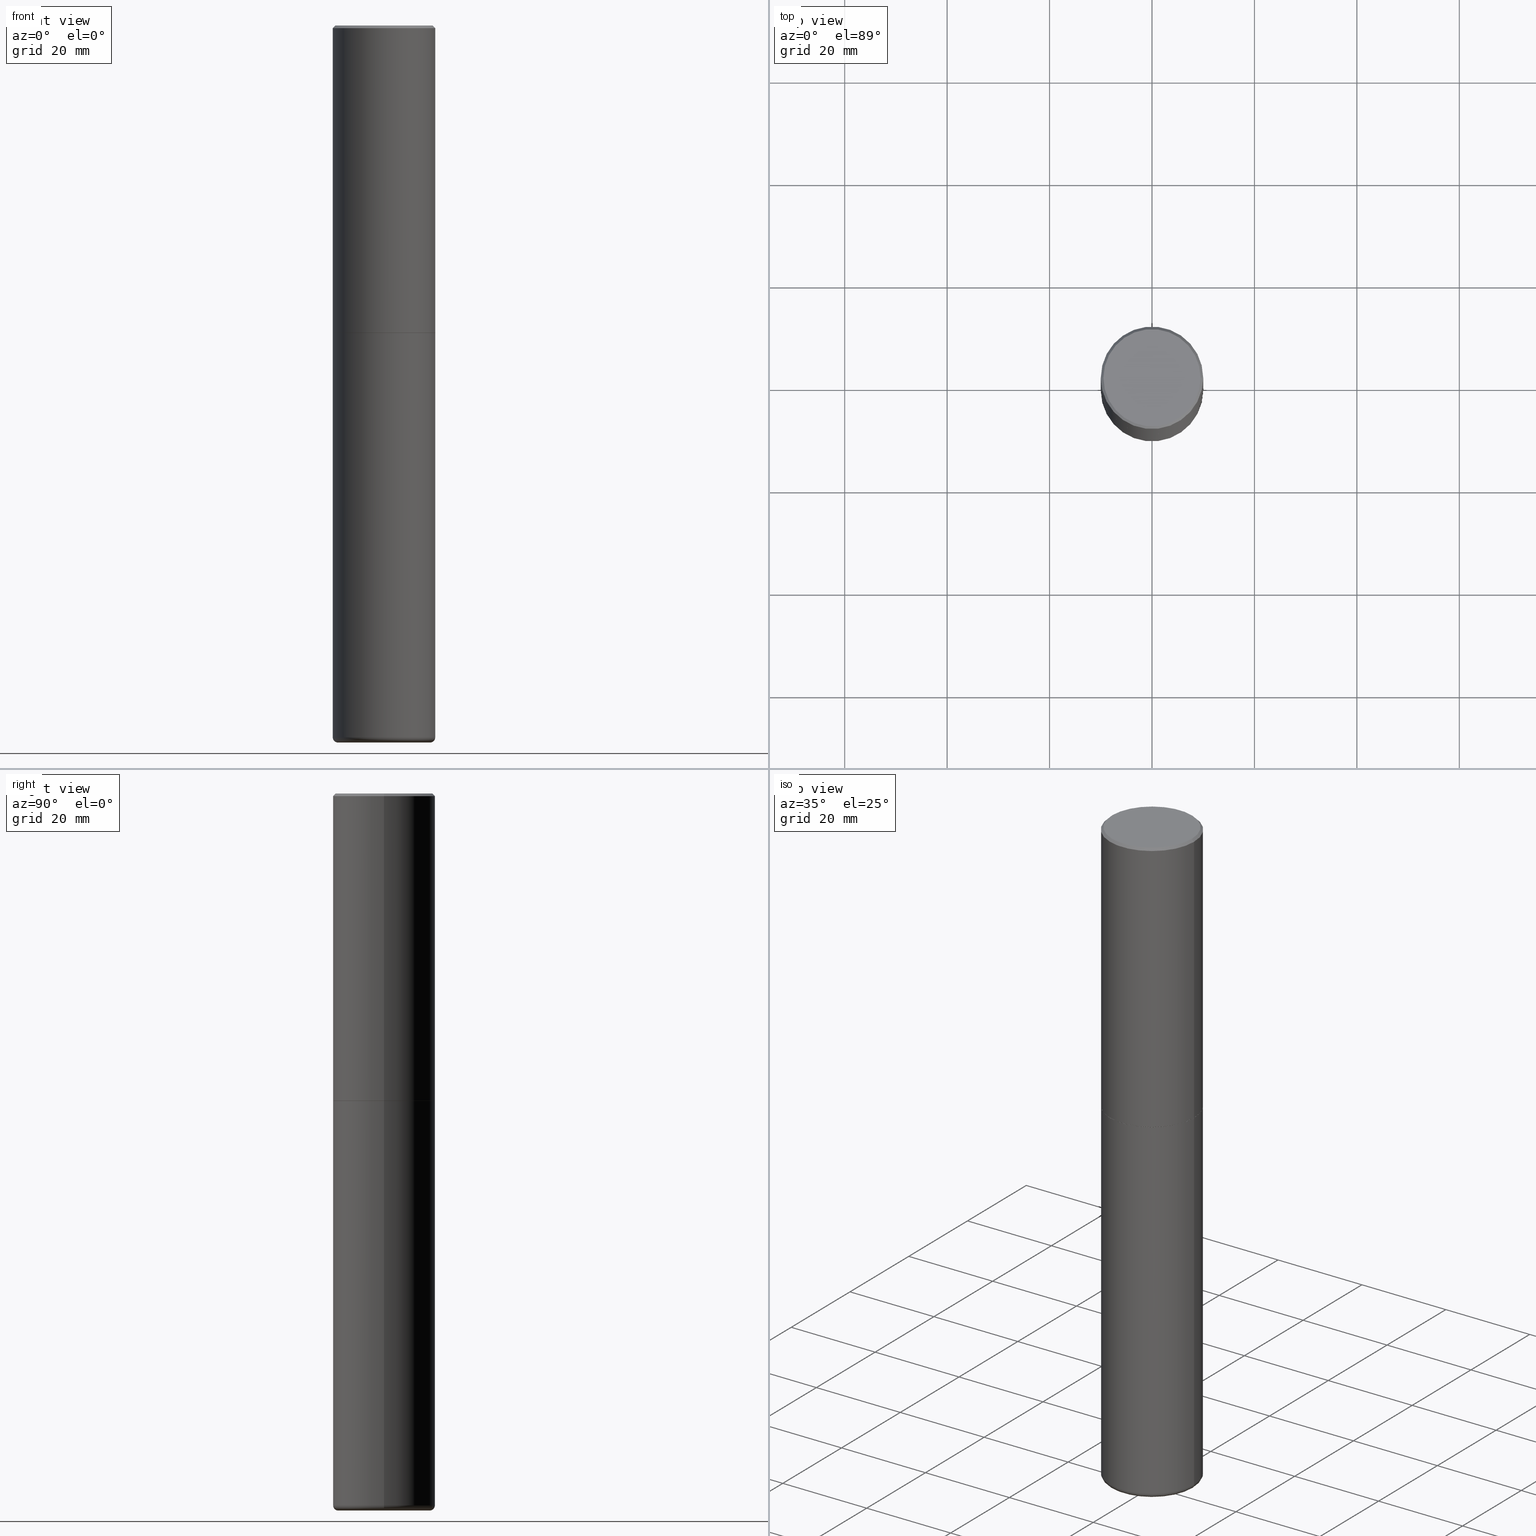
[diagram: canonical four-view strip — front | top / right | iso, engineering-drawing reading convention]
A machine part, canonical four-view strip (front | top / right | iso — engineering-drawing reading convention). The complete STEP part file that produces these views, byte-faithful:
ISO-10303-21;
HEADER;
FILE_DESCRIPTION (( 'STEP AP203' ),
    '1' );
FILE_NAME ('74546.STEP',
    '2024-03-06T15:27:01',
    ( '' ),
    ( '' ),
    'SwSTEP 2.0',
    'SolidWorks 2023',
    '' );
FILE_SCHEMA (( 'CONFIG_CONTROL_DESIGN' ));
ENDSEC;

DATA;
#1 = EDGE_CURVE ( 'NONE', #410, #103, #169, .T. ) ;
#2 = LINE ( 'NONE', #365, #347 ) ;
#3 = AXIS2_PLACEMENT_3D ( 'NONE', #111, #217, #334 ) ;
#4 = CIRCLE ( 'NONE', #85, 0.3737000000000003097 ) ;
#5 = VECTOR ( 'NONE', #183, 39.37007874015748143 ) ;
#6 = APPROVAL_ROLE ( '' ) ;
#7 = DIRECTION ( 'NONE',  ( 1.000000000000000000, -6.982962677686272233E-15, 4.883557194083114022E-29 ) ) ;
#8 = FACE_OUTER_BOUND ( 'NONE', #384, .T. ) ;
#9 = CARTESIAN_POINT ( 'NONE',  ( 5.774240945164344150E-29, -8.244085737276435042E-15, -2.361199999999999743 ) ) ;
#10 =( NAMED_UNIT ( * ) PLANE_ANGLE_UNIT ( ) SI_UNIT ( $, .RADIAN. ) );
#11 = DIRECTION ( 'NONE',  ( 0.7071067811865450192, -7.319954787623246579E-15, -0.7071067811865500152 ) ) ;
#12 = CARTESIAN_POINT ( 'NONE',  ( 0.000000000000000000, 0.000000000000000000, 0.000000000000000000 ) ) ;
#13 = CARTESIAN_POINT ( 'NONE',  ( 1.338258349496754075E-28, -1.910678247868523272E-14, -5.472400000000000375 ) ) ;
#14 = DIRECTION ( 'NONE',  ( 2.438088387897960049E-29, -3.491481338843145188E-15, -1.000000000000000000 ) ) ;
#15 = AXIS2_PLACEMENT_3D ( 'NONE', #236, #170, #63 ) ;
#16 = PRODUCT_DEFINITION ( 'UNKNOWN', '', #125, #247 ) ;
#17 = DIRECTION ( 'NONE',  ( 1.000000000000000000, -6.982962677686266711E-15, 4.877734241229871763E-29 ) ) ;
#18 = ADVANCED_FACE ( 'NONE', ( #21 ), #253, .T. ) ;
#19 = AXIS2_PLACEMENT_3D ( 'NONE', #339, #154, #362 ) ;
#20 = ORIENTED_EDGE ( 'NONE', *, *, #156, .F. ) ;
#21 = FACE_OUTER_BOUND ( 'NONE', #165, .T. ) ;
#22 = VERTEX_POINT ( 'NONE', #291 ) ;
#23 = EDGE_CURVE ( 'NONE', #346, #410, #50, .T. ) ;
#24 = CARTESIAN_POINT ( 'NONE',  ( -0.3926999999999999935, -5.457275895285365059E-15, -2.362200000000000077 ) ) ;
#25 = DIRECTION ( 'NONE',  ( -6.982962677686266711E-15, -1.000000000000000000, 3.491481338843145583E-15 ) ) ;
#26 = DATE_AND_TIME ( #234, #342 ) ;
#27 = CIRCLE ( 'NONE', #379, 0.3937000000000000499 ) ;
#28 = DIRECTION ( 'NONE',  ( -2.445468806185136877E-29, 3.491481338843145188E-15, 1.000000000000000000 ) ) ;
#29 = MECHANICAL_CONTEXT ( 'NONE', #42, 'mechanical' ) ;
#30 = ORIENTED_EDGE ( 'NONE', *, *, #23, .T. ) ;
#31 = ADVANCED_FACE ( 'NONE', ( #185 ), #276, .F. ) ;
#32 = DIRECTION ( 'NONE',  ( -1.000000000000000000, 7.105427357601014480E-15, 0.000000000000000000 ) ) ;
#33 = APPLICATION_PROTOCOL_DEFINITION ( 'international standard', 'config_control_design', 1994, #42 ) ;
#34 = CARTESIAN_POINT ( 'NONE',  ( 0.3937000000000000499, -2.770807688499515734E-15, -0.02000000000000008715 ) ) ;
#35 = DIRECTION ( 'NONE',  ( -2.445468806185136877E-29, 3.491481338843145188E-15, 1.000000000000000000 ) ) ;
#36 = DIMENSIONAL_EXPONENTS ( 1.000000000000000000, 0.000000000000000000, 0.000000000000000000, 0.000000000000000000, 0.000000000000000000, 0.000000000000000000, 0.000000000000000000 ) ;
#37 = FACE_OUTER_BOUND ( 'NONE', #109, .T. ) ;
#38 = CONICAL_SURFACE ( 'NONE', #280, 0.3926999999999999935, 0.7853981633975507526 ) ;
#39 = PERSON_AND_ORGANIZATION ( #54, #408 ) ;
#40 = EDGE_LOOP ( 'NONE', ( #114, #128, #259, #350 ) ) ;
#41 = CLOSED_SHELL ( 'NONE', ( #295, #245, #79, #402, #102, #370 ) ) ;
#42 = APPLICATION_CONTEXT ( 'configuration controlled 3d designs of mechanical parts and assemblies' ) ;
#43 = VECTOR ( 'NONE', #255, 39.37007874015748143 ) ;
#44 = DIRECTION ( 'NONE',  ( -2.445468806185136597E-29, 3.491481338843145583E-15, 1.000000000000000000 ) ) ;
#45 = DIRECTION ( 'NONE',  ( 1.000000000000000000, -6.982962677686265133E-15, 0.000000000000000000 ) ) ;
#46 = CARTESIAN_POINT ( 'NONE',  ( -0.3937000000000001609, 2.797406750687515575E-15, -1.936584745033357296E-29 ) ) ;
#47 = CARTESIAN_POINT ( 'NONE',  ( 5.776686413970529753E-29, -8.247577218615279626E-15, -2.362200000000000077 ) ) ;
#48 = COORDINATED_UNIVERSAL_TIME_OFFSET ( 5, 0, .BEHIND. ) ;
#49 = CARTESIAN_POINT ( 'NONE',  ( -0.3737000000000003097, 2.644447966039789847E-15, -2.219626494852397645E-16 ) ) ;
#50 = CIRCLE ( 'NONE', #374, 0.3926999999999999935 ) ;
#51 =( CONVERSION_BASED_UNIT ( 'INCH', #186 ) LENGTH_UNIT ( ) NAMED_UNIT ( #36 ) );
#52 = CARTESIAN_POINT ( 'NONE',  ( 4.890937612370294178E-31, -6.982962677686321191E-17, -0.02000000000000008715 ) ) ;
#53 = ORIENTED_EDGE ( 'NONE', *, *, #136, .T. ) ;
#54 = PERSON ( 'UNSPECIFIED', 'UNSPECIFIED', 'UNSPECIFIED', ('UNSPECIFIED'), ('UNSPECIFIED'), ('UNSPECIFIED') ) ;
#55 = ORIENTED_EDGE ( 'NONE', *, *, #283, .T. ) ;
#56 = EDGE_LOOP ( 'NONE', ( #66, #409, #232, #83 ) ) ;
#57 = AXIS2_PLACEMENT_3D ( 'NONE', #349, #61, #231 ) ;
#58 = DIRECTION ( 'NONE',  ( -2.445468806185136597E-29, 3.491481338843145583E-15, 1.000000000000000000 ) ) ;
#59 = DIRECTION ( 'NONE',  ( -2.445468806185136597E-29, 3.491481338843145583E-15, 1.000000000000000000 ) ) ;
#60 = CC_DESIGN_PERSON_AND_ORGANIZATION_ASSIGNMENT ( #269, #101, ( #125 ) ) ;
#61 = DIRECTION ( 'NONE',  ( 2.445468806185136597E-29, -3.491481338843145583E-15, -1.000000000000000000 ) ) ;
#62 = CC_DESIGN_PERSON_AND_ORGANIZATION_ASSIGNMENT ( #147, #330, ( #125 ) ) ;
#63 = DIRECTION ( 'NONE',  ( -1.000000000000000000, 6.982962677686265922E-15, -4.876176775795935793E-29 ) ) ;
#64 = EDGE_CURVE ( 'NONE', #326, #91, #206, .T. ) ;
#65 = ORIENTED_EDGE ( 'NONE', *, *, #337, .T. ) ;
#66 = ORIENTED_EDGE ( 'NONE', *, *, #156, .T. ) ;
#67 = AXIS2_PLACEMENT_3D ( 'NONE', #311, #366, #184 ) ;
#68 = DIRECTION ( 'NONE',  ( 1.000000000000000000, -6.982962677686272233E-15, 4.883557194083114022E-29 ) ) ;
#69 = APPROVAL ( #249, 'UNSPECIFIED' ) ;
#70 = APPLICATION_CONTEXT ( 'configuration controlled 3d designs of mechanical parts and assemblies' ) ;
#71 = PLANE ( 'NONE',  #318 ) ;
#72 = EDGE_CURVE ( 'NONE', #103, #22, #305, .T. ) ;
#73 = DIRECTION ( 'NONE',  ( -2.445468806185136597E-29, 3.491481338843145583E-15, 1.000000000000000000 ) ) ;
#74 = EDGE_CURVE ( 'NONE', #145, #142, #98, .T. ) ;
#75 = APPLICATION_PROTOCOL_DEFINITION ( 'international standard', 'config_control_design', 1994, #70 ) ;
#76 = ORIENTED_EDGE ( 'NONE', *, *, #1, .F. ) ;
#77 = SHAPE_DEFINITION_REPRESENTATION ( #363, #273 ) ;
#78 = CIRCLE ( 'NONE', #135, 0.3543000000000000038 ) ;
#79 = ADVANCED_FACE ( 'NONE', ( #353 ), #71, .F. ) ;
#80 = LOCAL_TIME ( 10, 27, 1.000000000000000000, #84 ) ;
#81 = EDGE_LOOP ( 'NONE', ( #229, #317 ) ) ;
#82 = CALENDAR_DATE ( 2024, 6, 3 ) ;
#83 = ORIENTED_EDGE ( 'NONE', *, *, #340, .F. ) ;
#84 = COORDINATED_UNIVERSAL_TIME_OFFSET ( 5, 0, .BEHIND. ) ;
#85 = AXIS2_PLACEMENT_3D ( 'NONE', #310, #400, #119 ) ;
#86 = FACE_OUTER_BOUND ( 'NONE', #193, .T. ) ;
#87 = SECURITY_CLASSIFICATION_LEVEL ( 'unclassified' ) ;
#88 = DIRECTION ( 'NONE',  ( -2.445468806185136597E-29, 3.491481338843145583E-15, 1.000000000000000000 ) ) ;
#89 = CARTESIAN_POINT ( 'NONE',  ( 0.3926999999999999935, -1.098978666214267525E-14, -2.362200000000000077 ) ) ;
#90 = DIRECTION ( 'NONE',  ( -2.445468806185136597E-29, 3.491481338843145583E-15, 1.000000000000000000 ) ) ;
#91 = VERTEX_POINT ( 'NONE', #34 ) ;
#92 = VECTOR ( 'NONE', #394, 39.37007874015748143 ) ;
#93 = VERTEX_POINT ( 'NONE', #174 ) ;
#94 = ORIENTED_EDGE ( 'NONE', *, *, #340, .T. ) ;
#95 = EDGE_LOOP ( 'NONE', ( #288, #405 ) ) ;
#96 = ADVANCED_FACE ( 'NONE', ( #386 ), #141, .T. ) ;
#97 = DIRECTION ( 'NONE',  ( -2.445468806185136597E-29, 3.491481338843145583E-15, 1.000000000000000000 ) ) ;
#98 = CIRCLE ( 'NONE', #163, 0.3937000000000000499 ) ;
#99 = TOROIDAL_SURFACE ( 'NONE', #319, 0.3543000000000000038, 0.03940000000000033753 ) ;
#100 = EDGE_CURVE ( 'NONE', #205, #93, #323, .T. ) ;
#101 = PERSON_AND_ORGANIZATION_ROLE ( 'design_supplier' ) ;
#102 = ADVANCED_FACE ( 'NONE', ( #37 ), #99, .T. ) ;
#103 = VERTEX_POINT ( 'NONE', #325 ) ;
#104 = CARTESIAN_POINT ( 'NONE',  ( 1.338258349496754075E-28, -1.910678247868523272E-14, -5.472400000000000375 ) ) ;
#105 = APPROVAL_PERSON_ORGANIZATION ( #39, #238, #338 ) ;
#106 = CC_DESIGN_APPROVAL ( #69, ( #294 ) ) ;
#107 = PERSON_AND_ORGANIZATION ( #54, #408 ) ;
#108 = LINE ( 'NONE', #219, #296 ) ;
#109 = EDGE_LOOP ( 'NONE', ( #127, #293, #137, #331 ) ) ;
#110 = APPROVAL_DATE_TIME ( #297, #69 ) ;
#111 = CARTESIAN_POINT ( 'NONE',  ( 4.890937612370294178E-31, -6.982962677686321191E-17, -0.02000000000000008715 ) ) ;
#112 = AXIS2_PLACEMENT_3D ( 'NONE', #131, #25, #265 ) ;
#113 = LINE ( 'NONE', #89, #43 ) ;
#114 = ORIENTED_EDGE ( 'NONE', *, *, #181, .T. ) ;
#115 = EDGE_CURVE ( 'NONE', #327, #205, #129, .T. ) ;
#116 = DIRECTION ( 'NONE',  ( 2.445468806185136597E-29, -3.491481338843145583E-15, -1.000000000000000000 ) ) ;
#117 = DIRECTION ( 'NONE',  ( -2.445468806185136597E-29, 3.491481338843145583E-15, 1.000000000000000000 ) ) ;
#118 = DIRECTION ( 'NONE',  ( 1.000000000000000000, -6.982962677686267499E-15, 0.000000000000000000 ) ) ;
#119 = DIRECTION ( 'NONE',  ( 1.000000000000000000, -6.982962677686266711E-15, 4.877734241229871763E-29 ) ) ;
#120 = PRODUCT ( '74546', '74546', '', ( #29 ) ) ;
#121 = VERTEX_POINT ( 'NONE', #171 ) ;
#122 = CARTESIAN_POINT ( 'NONE',  ( 5.776686413970529753E-29, -8.247577218615279626E-15, -2.362200000000000077 ) ) ;
#123 = AXIS2_PLACEMENT_3D ( 'NONE', #9, #117, #130 ) ;
#124 = AXIS2_PLACEMENT_3D ( 'NONE', #157, #88, #188 ) ;
#125 = PRODUCT_DEFINITION_FORMATION_WITH_SPECIFIED_SOURCE ( 'ANY', '', #120, .NOT_KNOWN. ) ;
#126 = EDGE_LOOP ( 'NONE', ( #358, #261, #94, #320 ) ) ;
#127 = ORIENTED_EDGE ( 'NONE', *, *, #115, .F. ) ;
#128 = ORIENTED_EDGE ( 'NONE', *, *, #115, .T. ) ;
#129 = CIRCLE ( 'NONE', #233, 0.03940000000000033753 ) ;
#130 = DIRECTION ( 'NONE',  ( 1.000000000000000000, -6.982962677686265922E-15, 0.000000000000000000 ) ) ;
#131 = CARTESIAN_POINT ( 'NONE',  ( 0.3543000000000000038, -2.158084615538947751E-14, -5.472400000000000375 ) ) ;
#132 = MANIFOLD_SOLID_BREP ( 'Body-Move/Copy2[1]', #41 ) ;
#133 = MANIFOLD_SOLID_BREP ( 'Body-Move/Copy2[2]', #341 ) ;
#134 = EDGE_LOOP ( 'NONE', ( #30, #381, #20, #302 ) ) ;
#135 = AXIS2_PLACEMENT_3D ( 'NONE', #189, #286, #161 ) ;
#136 = EDGE_CURVE ( 'NONE', #155, #326, #108, .T. ) ;
#137 = ORIENTED_EDGE ( 'NONE', *, *, #204, .T. ) ;
#138 = PERSON_AND_ORGANIZATION ( #54, #408 ) ;
#139 = CARTESIAN_POINT ( 'NONE',  ( 0.3937000000000000499, -1.099676962482036284E-14, -2.362200000000000077 ) ) ;
#140 = APPROVAL ( #304, 'UNSPECIFIED' ) ;
#141 = CYLINDRICAL_SURFACE ( 'NONE', #241, 0.3937000000000001609 ) ;
#142 = VERTEX_POINT ( 'NONE', #139 ) ;
#143 = CARTESIAN_POINT ( 'NONE',  ( -0.3937000000000000499, -1.087977309796274139E-14, -2.362200000000000077 ) ) ;
#144 = CIRCLE ( 'NONE', #179, 0.3543000000000000038 ) ;
#145 = VERTEX_POINT ( 'NONE', #143 ) ;
#146 = COORDINATED_UNIVERSAL_TIME_OFFSET ( 5, 0, .BEHIND. ) ;
#147 = PERSON_AND_ORGANIZATION ( #54, #408 ) ;
#148 = PLANE ( 'NONE',  #15 ) ;
#149 = CARTESIAN_POINT ( 'NONE',  ( 1.347893496593123871E-28, -1.924434684343565194E-14, -5.511800000000000921 ) ) ;
#150 = CARTESIAN_POINT ( 'NONE',  ( -0.3937000000000002164, -1.630937572799771557E-14, -5.472400000000000375 ) ) ;
#151 = EDGE_CURVE ( 'NONE', #121, #91, #2, .T. ) ;
#152 =( NAMED_UNIT ( * ) SI_UNIT ( $, .STERADIAN. ) SOLID_ANGLE_UNIT ( ) );
#153 = LINE ( 'NONE', #281, #207 ) ;
#154 = DIRECTION ( 'NONE',  ( -2.445468806185136597E-29, 3.491481338843145583E-15, 1.000000000000000000 ) ) ;
#155 = VERTEX_POINT ( 'NONE', #49 ) ;
#156 = EDGE_CURVE ( 'NONE', #22, #103, #172, .T. ) ;
#157 = CARTESIAN_POINT ( 'NONE',  ( 0.000000000000000000, 0.000000000000000000, 0.000000000000000000 ) ) ;
#158 = DIRECTION ( 'NONE',  ( -2.445468806185136597E-29, 3.491481338843145583E-15, 1.000000000000000000 ) ) ;
#159 = DIRECTION ( 'NONE',  ( -1.000000000000000000, 6.982962677686265922E-15, -4.876176775795935793E-29 ) ) ;
#160 = DIRECTION ( 'NONE',  ( -2.445468806185136597E-29, 3.491481338843145583E-15, 1.000000000000000000 ) ) ;
#161 = DIRECTION ( 'NONE',  ( 1.000000000000000000, -6.982962677686272233E-15, 0.000000000000000000 ) ) ;
#162 = ORIENTED_EDGE ( 'NONE', *, *, #151, .T. ) ;
#163 = AXIS2_PLACEMENT_3D ( 'NONE', #378, #197, #235 ) ;
#164 = AXIS2_PLACEMENT_3D ( 'NONE', #282, #308, #17 ) ;
#165 = EDGE_LOOP ( 'NONE', ( #224, #237, #53, #243 ) ) ;
#166 = EDGE_CURVE ( 'NONE', #155, #121, #214, .T. ) ;
#167 = EDGE_CURVE ( 'NONE', #121, #155, #4, .T. ) ;
#168 = CONICAL_SURFACE ( 'NONE', #260, 0.3926999999999999935, 0.7853981633975507526 ) ;
#169 = LINE ( 'NONE', #24, #287 ) ;
#170 = DIRECTION ( 'NONE',  ( 2.438088387897960049E-29, -3.491481338843145188E-15, -1.000000000000000000 ) ) ;
#171 = CARTESIAN_POINT ( 'NONE',  ( 0.3737000000000003097, -2.667287895133369937E-15, -2.219626494852029345E-16 ) ) ;
#172 = CIRCLE ( 'NONE', #19, 0.3937000000000002720 ) ;
#173 = DIRECTION ( 'NONE',  ( 1.000000000000000000, -6.982962677686266711E-15, 4.876176775795935793E-29 ) ) ;
#174 = CARTESIAN_POINT ( 'NONE',  ( 0.3937000000000002164, -2.185597488489031909E-14, -5.472400000000000375 ) ) ;
#175 = APPROVAL_STATUS ( 'not_yet_approved' ) ;
#176 = CC_DESIGN_PERSON_AND_ORGANIZATION_ASSIGNMENT ( #138, #299, ( #16 ) ) ;
#177 = APPROVAL_ROLE ( '' ) ;
#178 = CARTESIAN_POINT ( 'NONE',  ( 5.776686413970529753E-29, -8.247577218615279626E-15, -2.362200000000000077 ) ) ;
#179 = AXIS2_PLACEMENT_3D ( 'NONE', #149, #278, #376 ) ;
#180 = DATE_TIME_ROLE ( 'classification_date' ) ;
#181 = EDGE_CURVE ( 'NONE', #258, #327, #144, .T. ) ;
#182 = DIRECTION ( 'NONE',  ( 1.000000000000000000, -6.982962677686265133E-15, 0.000000000000000000 ) ) ;
#183 = DIRECTION ( 'NONE',  ( -2.445468806185136877E-29, 3.491481338843145188E-15, 1.000000000000000000 ) ) ;
#184 = DIRECTION ( 'NONE',  ( 1.000000000000000000, -6.982962677686265133E-15, 0.000000000000000000 ) ) ;
#185 = FACE_OUTER_BOUND ( 'NONE', #81, .T. ) ;
#186 = LENGTH_MEASURE_WITH_UNIT ( LENGTH_MEASURE( 0.02539999999999999897 ), #192 );
#187 = CARTESIAN_POINT ( 'NONE',  ( 0.000000000000000000, 0.000000000000000000, 0.000000000000000000 ) ) ;
#188 = DIRECTION ( 'NONE',  ( 1.000000000000000000, -6.982962677686265922E-15, 4.876176775795935793E-29 ) ) ;
#189 = CARTESIAN_POINT ( 'NONE',  ( 1.347893496593123871E-28, -1.924434684343565194E-14, -5.511800000000000921 ) ) ;
#190 =( GEOMETRIC_REPRESENTATION_CONTEXT ( 3 ) GLOBAL_UNCERTAINTY_ASSIGNED_CONTEXT ( ( #212 ) ) GLOBAL_UNIT_ASSIGNED_CONTEXT ( ( #51, #10, #152 ) ) REPRESENTATION_CONTEXT ( 'NONE', 'WORKASPACE' ) );
#191 = CC_DESIGN_APPROVAL ( #140, ( #125 ) ) ;
#192 =( LENGTH_UNIT ( ) NAMED_UNIT ( * ) SI_UNIT ( $, .METRE. ) );
#193 = EDGE_LOOP ( 'NONE', ( #76, #415, #377, #289 ) ) ;
#194 = CONICAL_SURFACE ( 'NONE', #316, 0.3937000000000000499, 0.7853981633974447263 ) ;
#195 = DIRECTION ( 'NONE',  ( -2.438088387897960049E-29, 3.491481338843145188E-15, 1.000000000000000000 ) ) ;
#196 = ADVANCED_FACE ( 'NONE', ( #284 ), #168, .T. ) ;
#197 = DIRECTION ( 'NONE',  ( -2.445468806185136597E-29, 3.491481338843145583E-15, 1.000000000000000000 ) ) ;
#198 = ORIENTED_EDGE ( 'NONE', *, *, #275, .F. ) ;
#199 = FACE_OUTER_BOUND ( 'NONE', #95, .T. ) ;
#200 = AXIS2_PLACEMENT_3D ( 'NONE', #397, #195, #367 ) ;
#201 = VECTOR ( 'NONE', #35, 39.37007874015748143 ) ;
#202 = AXIS2_PLACEMENT_3D ( 'NONE', #336, #333, #7 ) ;
#203 = CARTESIAN_POINT ( 'NONE',  ( 2.609533152651359776E-15, 0.3737000000000003097, -1.415747901068295320E-15 ) ) ;
#204 = EDGE_CURVE ( 'NONE', #258, #93, #389, .T. ) ;
#205 = VERTEX_POINT ( 'NONE', #150 ) ;
#206 = CIRCLE ( 'NONE', #3, 0.3937000000000000499 ) ;
#207 = VECTOR ( 'NONE', #28, 39.37007874015748143 ) ;
#208 = EDGE_CURVE ( 'NONE', #410, #346, #225, .T. ) ;
#209 = ORIENTED_EDGE ( 'NONE', *, *, #337, .F. ) ;
#210 = CALENDAR_DATE ( 2024, 6, 3 ) ;
#211 = EDGE_CURVE ( 'NONE', #346, #22, #113, .T. ) ;
#212 = UNCERTAINTY_MEASURE_WITH_UNIT (LENGTH_MEASURE( 1.000000000000000082E-05 ), #51, 'distance_accuracy_value', 'NONE');
#213 = PERSON_AND_ORGANIZATION ( #54, #408 ) ;
#214 = CIRCLE ( 'NONE', #164, 0.3737000000000003097 ) ;
#215 = APPROVAL_PERSON_ORGANIZATION ( #213, #69, #6 ) ;
#216 = CARTESIAN_POINT ( 'NONE',  ( 5.776686413970529753E-29, -8.247577218615279626E-15, -2.362200000000000077 ) ) ;
#217 = DIRECTION ( 'NONE',  ( -2.445468806185136597E-29, 3.491481338843145583E-15, 1.000000000000000000 ) ) ;
#218 = DATE_TIME_ROLE ( 'creation_date' ) ;
#219 = CARTESIAN_POINT ( 'NONE',  ( -0.3937000000000000499, 2.679362779428219918E-15, -0.02000000000000008715 ) ) ;
#220 = LINE ( 'NONE', #46, #5 ) ;
#221 = DIRECTION ( 'NONE',  ( 1.000000000000000000, -6.982962677686267499E-15, 0.000000000000000000 ) ) ;
#222 = CYLINDRICAL_SURFACE ( 'NONE', #262, 0.3937000000000000499 ) ;
#223 = CC_DESIGN_DATE_AND_TIME_ASSIGNMENT ( #361, #218, ( #16 ) ) ;
#224 = ORIENTED_EDGE ( 'NONE', *, *, #151, .F. ) ;
#225 = CIRCLE ( 'NONE', #67, 0.3926999999999999935 ) ;
#226 = LOCAL_TIME ( 10, 27, 1.000000000000000000, #146 ) ;
#227 = EDGE_CURVE ( 'NONE', #93, #205, #27, .T. ) ;
#228 = DIRECTION ( 'NONE',  ( 1.000000000000000000, -6.982962677686265922E-15, 0.000000000000000000 ) ) ;
#229 = ORIENTED_EDGE ( 'NONE', *, *, #23, .F. ) ;
#230 = EDGE_LOOP ( 'NONE', ( #198, #356, #65, #267 ) ) ;
#231 = DIRECTION ( 'NONE',  ( -1.000000000000000000, 6.982962677686265922E-15, 0.000000000000000000 ) ) ;
#232 = ORIENTED_EDGE ( 'NONE', *, *, #407, .F. ) ;
#233 = AXIS2_PLACEMENT_3D ( 'NONE', #264, #239, #32 ) ;
#234 = CALENDAR_DATE ( 2024, 6, 3 ) ;
#235 = DIRECTION ( 'NONE',  ( 1.000000000000000000, -6.982962677686267499E-15, 0.000000000000000000 ) ) ;
#236 = CARTESIAN_POINT ( 'NONE',  ( 1.608174522551343460E-29, -3.624395144008107649E-14, -5.511800000000000033 ) ) ;
#237 = ORIENTED_EDGE ( 'NONE', *, *, #166, .F. ) ;
#238 = APPROVAL ( #175, 'UNSPECIFIED' ) ;
#239 = DIRECTION ( 'NONE',  ( 7.105427357601001859E-15, 1.000000000000000000, -3.491481338843145583E-15 ) ) ;
#240 = PERSON_AND_ORGANIZATION ( #54, #408 ) ;
#241 = AXIS2_PLACEMENT_3D ( 'NONE', #388, #73, #298 ) ;
#242 = DIRECTION ( 'NONE',  ( 2.438088387897960049E-29, -3.491481338843145188E-15, -1.000000000000000000 ) ) ;
#243 = ORIENTED_EDGE ( 'NONE', *, *, #64, .T. ) ;
#244 = PERSON_AND_ORGANIZATION_ROLE ( 'classification_officer' ) ;
#245 = ADVANCED_FACE ( 'NONE', ( #314 ), #383, .T. ) ;
#246 = AXIS2_PLACEMENT_3D ( 'NONE', #187, #392, #332 ) ;
#247 = DESIGN_CONTEXT ( 'detailed design', #70, 'design' ) ;
#248 = ORIENTED_EDGE ( 'NONE', *, *, #416, .F. ) ;
#249 = APPROVAL_STATUS ( 'not_yet_approved' ) ;
#250 = CARTESIAN_POINT ( 'NONE',  ( 0.3543000000000000038, -2.171841052013989988E-14, -5.511800000000000921 ) ) ;
#251 = CARTESIAN_POINT ( 'NONE',  ( 0.000000000000000000, 0.000000000000000000, 0.000000000000000000 ) ) ;
#252 = APPROVAL_DATE_TIME ( #303, #140 ) ;
#253 = CONICAL_SURFACE ( 'NONE', #57, 0.3937000000000000499, 0.7853981633974447263 ) ;
#254 = APPROVAL_PERSON_ORGANIZATION ( #385, #140, #177 ) ;
#255 = DIRECTION ( 'NONE',  ( 0.7071067811866199593, -2.468850131083015945E-15, 0.7071067811864750752 ) ) ;
#256 = FACE_OUTER_BOUND ( 'NONE', #348, .T. ) ;
#257 = CC_DESIGN_PERSON_AND_ORGANIZATION_ASSIGNMENT ( #240, #387, ( #120 ) ) ;
#258 = VERTEX_POINT ( 'NONE', #250 ) ;
#259 = ORIENTED_EDGE ( 'NONE', *, *, #227, .F. ) ;
#260 = AXIS2_PLACEMENT_3D ( 'NONE', #122, #160, #45 ) ;
#261 = ORIENTED_EDGE ( 'NONE', *, *, #72, .T. ) ;
#262 = AXIS2_PLACEMENT_3D ( 'NONE', #251, #158, #344 ) ;
#263 = DIRECTION ( 'NONE',  ( -0.7071067811866199593, 7.493145998870616062E-15, 0.7071067811864750752 ) ) ;
#264 = CARTESIAN_POINT ( 'NONE',  ( -0.3543000000000000038, -1.658932956588719576E-14, -5.472400000000000375 ) ) ;
#265 = DIRECTION ( 'NONE',  ( 1.000000000000000000, -6.982962677686268288E-15, 0.000000000000000000 ) ) ;
#266 = EDGE_LOOP ( 'NONE', ( #406, #162, #272, #411 ) ) ;
#267 = ORIENTED_EDGE ( 'NONE', *, *, #74, .F. ) ;
#268 = CIRCLE ( 'NONE', #412, 0.3937000000000000499 ) ;
#269 = PERSON_AND_ORGANIZATION ( #54, #408 ) ;
#270 = ADVANCED_FACE ( 'NONE', ( #86 ), #38, .T. ) ;
#271 = FACE_OUTER_BOUND ( 'NONE', #56, .T. ) ;
#272 = ORIENTED_EDGE ( 'NONE', *, *, #407, .T. ) ;
#273 = ADVANCED_BREP_SHAPE_REPRESENTATION ( '74546', ( #132, #133, #246 ), #190 ) ;
#274 = DATE_AND_TIME ( #210, #226 ) ;
#275 = EDGE_CURVE ( 'NONE', #205, #145, #279, .T. ) ;
#276 = PLANE ( 'NONE',  #200 ) ;
#277 = COORDINATED_UNIVERSAL_TIME_OFFSET ( 5, 0, .BEHIND. ) ;
#278 = DIRECTION ( 'NONE',  ( -2.445468806185136597E-29, 3.491481338843145583E-15, 1.000000000000000000 ) ) ;
#279 = LINE ( 'NONE', #369, #92 ) ;
#280 = AXIS2_PLACEMENT_3D ( 'NONE', #216, #44, #182 ) ;
#281 = CARTESIAN_POINT ( 'NONE',  ( 0.3937000000000000499, -2.749192406205083217E-15, 1.919750796630860172E-29 ) ) ;
#282 = CARTESIAN_POINT ( 'NONE',  ( 5.428027354543142984E-45, -7.749784485978325769E-31, -2.219626494852213988E-16 ) ) ;
#283 = EDGE_CURVE ( 'NONE', #142, #145, #329, .T. ) ;
#284 = FACE_OUTER_BOUND ( 'NONE', #134, .T. ) ;
#285 = ADVANCED_FACE ( 'NONE', ( #399 ), #194, .T. ) ;
#286 = DIRECTION ( 'NONE',  ( -2.445468806185136597E-29, 3.491481338843145583E-15, 1.000000000000000000 ) ) ;
#287 = VECTOR ( 'NONE', #263, 39.37007874015748143 ) ;
#288 = ORIENTED_EDGE ( 'NONE', *, *, #166, .T. ) ;
#289 = ORIENTED_EDGE ( 'NONE', *, *, #72, .F. ) ;
#290 = ORIENTED_EDGE ( 'NONE', *, *, #181, .F. ) ;
#291 = CARTESIAN_POINT ( 'NONE',  ( 0.3937000000000002720, -1.099327814348151984E-14, -2.361199999999999743 ) ) ;
#292 = PRODUCT_RELATED_PRODUCT_CATEGORY ( 'detail', '', ( #120 ) ) ;
#293 = ORIENTED_EDGE ( 'NONE', *, *, #416, .T. ) ;
#294 = SECURITY_CLASSIFICATION ( '', '', #87 ) ;
#295 = ADVANCED_FACE ( 'NONE', ( #256 ), #372, .T. ) ;
#296 = VECTOR ( 'NONE', #414, 39.37007874015748143 ) ;
#297 = DATE_AND_TIME ( #357, #307 ) ;
#298 = DIRECTION ( 'NONE',  ( 1.000000000000000000, -6.982962677686266711E-15, 4.876176775795935793E-29 ) ) ;
#299 = PERSON_AND_ORGANIZATION_ROLE ( 'creator' ) ;
#300 = LINE ( 'NONE', #354, #201 ) ;
#301 = CARTESIAN_POINT ( 'NONE',  ( 0.3926999999999999935, -1.098978666214267525E-14, -2.362200000000000077 ) ) ;
#302 = ORIENTED_EDGE ( 'NONE', *, *, #211, .F. ) ;
#303 = DATE_AND_TIME ( #82, #321 ) ;
#304 = APPROVAL_STATUS ( 'not_yet_approved' ) ;
#305 = CIRCLE ( 'NONE', #123, 0.3937000000000002720 ) ;
#306 = AXIS2_PLACEMENT_3D ( 'NONE', #368, #90, #118 ) ;
#307 = LOCAL_TIME ( 10, 27, 1.000000000000000000, #391 ) ;
#308 = DIRECTION ( 'NONE',  ( -2.445468806185136597E-29, 3.491481338843145583E-15, 1.000000000000000000 ) ) ;
#309 = FACE_OUTER_BOUND ( 'NONE', #230, .T. ) ;
#310 = CARTESIAN_POINT ( 'NONE',  ( 5.428027354543142984E-45, -7.749784485978325769E-31, -2.219626494852213988E-16 ) ) ;
#311 = CARTESIAN_POINT ( 'NONE',  ( 5.776686413970529753E-29, -8.247577218615279626E-15, -2.362200000000000077 ) ) ;
#312 = DIRECTION ( 'NONE',  ( 1.000000000000000000, -6.982962677686265133E-15, 0.000000000000000000 ) ) ;
#313 = CARTESIAN_POINT ( 'NONE',  ( -0.3543000000000000038, -1.651813482931766843E-14, -5.511800000000000921 ) ) ;
#314 = FACE_OUTER_BOUND ( 'NONE', #40, .T. ) ;
#315 = EDGE_CURVE ( 'NONE', #103, #326, #220, .T. ) ;
#316 = AXIS2_PLACEMENT_3D ( 'NONE', #343, #116, #335 ) ;
#317 = ORIENTED_EDGE ( 'NONE', *, *, #208, .F. ) ;
#318 = AXIS2_PLACEMENT_3D ( 'NONE', #178, #242, #355 ) ;
#319 = AXIS2_PLACEMENT_3D ( 'NONE', #382, #97, #68 ) ;
#320 = ORIENTED_EDGE ( 'NONE', *, *, #64, .F. ) ;
#321 = LOCAL_TIME ( 10, 27, 1.000000000000000000, #277 ) ;
#322 = EDGE_LOOP ( 'NONE', ( #55, #345 ) ) ;
#323 = CIRCLE ( 'NONE', #375, 0.3937000000000000499 ) ;
#324 = ORIENTED_EDGE ( 'NONE', *, *, #283, .F. ) ;
#325 = CARTESIAN_POINT ( 'NONE',  ( -0.3937000000000003830, -1.359550931339130834E-15, -2.361199999999999743 ) ) ;
#326 = VERTEX_POINT ( 'NONE', #396 ) ;
#327 = VERTEX_POINT ( 'NONE', #313 ) ;
#328 = DIRECTION ( 'NONE',  ( -2.445468806185136597E-29, 3.491481338843145583E-15, 1.000000000000000000 ) ) ;
#329 = CIRCLE ( 'NONE', #306, 0.3937000000000000499 ) ;
#330 = PERSON_AND_ORGANIZATION_ROLE ( 'creator' ) ;
#331 = ORIENTED_EDGE ( 'NONE', *, *, #100, .F. ) ;
#332 = DIRECTION ( 'NONE',  ( 1.000000000000000000, 0.000000000000000000, 0.000000000000000000 ) ) ;
#333 = DIRECTION ( 'NONE',  ( -2.445468806185136597E-29, 3.491481338843145583E-15, 1.000000000000000000 ) ) ;
#334 = DIRECTION ( 'NONE',  ( 1.000000000000000000, -6.982962677686265922E-15, 0.000000000000000000 ) ) ;
#335 = DIRECTION ( 'NONE',  ( -1.000000000000000000, 6.982962677686265922E-15, 0.000000000000000000 ) ) ;
#336 = CARTESIAN_POINT ( 'NONE',  ( 1.338258349496754075E-28, -1.910678247868523272E-14, -5.472400000000000375 ) ) ;
#337 = EDGE_CURVE ( 'NONE', #93, #142, #153, .T. ) ;
#338 = APPROVAL_ROLE ( '' ) ;
#339 = CARTESIAN_POINT ( 'NONE',  ( 5.774240945164344150E-29, -8.244085737276435042E-15, -2.361199999999999743 ) ) ;
#340 = EDGE_CURVE ( 'NONE', #22, #91, #300, .T. ) ;
#341 = CLOSED_SHELL ( 'NONE', ( #196, #360, #285, #18, #96, #270, #31, #380 ) ) ;
#342 = LOCAL_TIME ( 10, 27, 1.000000000000000000, #48 ) ;
#343 = CARTESIAN_POINT ( 'NONE',  ( 4.890937612370294178E-31, -6.982962677686321191E-17, -0.02000000000000008715 ) ) ;
#344 = DIRECTION ( 'NONE',  ( 1.000000000000000000, -6.982962677686265922E-15, 4.876176775795935793E-29 ) ) ;
#345 = ORIENTED_EDGE ( 'NONE', *, *, #74, .T. ) ;
#346 = VERTEX_POINT ( 'NONE', #301 ) ;
#347 = VECTOR ( 'NONE', #11, 39.37007874015748143 ) ;
#348 = EDGE_LOOP ( 'NONE', ( #418, #373, #324, #209 ) ) ;
#349 = CARTESIAN_POINT ( 'NONE',  ( 4.890937612370294178E-31, -6.982962677686321191E-17, -0.02000000000000008715 ) ) ;
#350 = ORIENTED_EDGE ( 'NONE', *, *, #204, .F. ) ;
#351 = PLANE ( 'NONE',  #352 ) ;
#352 = AXIS2_PLACEMENT_3D ( 'NONE', #203, #14, #159 ) ;
#353 = FACE_OUTER_BOUND ( 'NONE', #322, .T. ) ;
#354 = CARTESIAN_POINT ( 'NONE',  ( 0.3937000000000001609, -2.749192406205084400E-15, 1.919750796630860732E-29 ) ) ;
#355 = DIRECTION ( 'NONE',  ( -1.000000000000000000, 6.982962677686265922E-15, -4.876176775795935793E-29 ) ) ;
#356 = ORIENTED_EDGE ( 'NONE', *, *, #100, .T. ) ;
#357 = CALENDAR_DATE ( 2024, 6, 3 ) ;
#358 = ORIENTED_EDGE ( 'NONE', *, *, #315, .F. ) ;
#359 = DIRECTION ( 'NONE',  ( 1.000000000000000000, -6.982962677686267499E-15, 0.000000000000000000 ) ) ;
#360 = ADVANCED_FACE ( 'NONE', ( #271 ), #417, .T. ) ;
#361 = DATE_AND_TIME ( #364, #80 ) ;
#362 = DIRECTION ( 'NONE',  ( 1.000000000000000000, -6.982962677686265922E-15, 0.000000000000000000 ) ) ;
#363 = PRODUCT_DEFINITION_SHAPE ( 'NONE', 'NONE',  #16 ) ;
#364 = CALENDAR_DATE ( 2024, 6, 3 ) ;
#365 = CARTESIAN_POINT ( 'NONE',  ( 0.3937000000000000499, -2.770807688499515734E-15, -0.02000000000000008715 ) ) ;
#366 = DIRECTION ( 'NONE',  ( -2.445468806185136597E-29, 3.491481338843145583E-15, 1.000000000000000000 ) ) ;
#367 = DIRECTION ( 'NONE',  ( 1.000000000000000000, -6.982962677686265922E-15, 4.876176775795935793E-29 ) ) ;
#368 = CARTESIAN_POINT ( 'NONE',  ( 5.776686413970529753E-29, -8.247577218615279626E-15, -2.362200000000000077 ) ) ;
#369 = CARTESIAN_POINT ( 'NONE',  ( -0.3937000000000000499, 2.797406750687514786E-15, -1.936584745033356735E-29 ) ) ;
#370 = ADVANCED_FACE ( 'NONE', ( #8 ), #148, .T. ) ;
#371 = CC_DESIGN_DATE_AND_TIME_ASSIGNMENT ( #274, #180, ( #294 ) ) ;
#372 = CYLINDRICAL_SURFACE ( 'NONE', #124, 0.3937000000000000499 ) ;
#373 = ORIENTED_EDGE ( 'NONE', *, *, #275, .T. ) ;
#374 = AXIS2_PLACEMENT_3D ( 'NONE', #47, #58, #312 ) ;
#375 = AXIS2_PLACEMENT_3D ( 'NONE', #104, #328, #359 ) ;
#376 = DIRECTION ( 'NONE',  ( 1.000000000000000000, -6.982962677686272233E-15, 0.000000000000000000 ) ) ;
#377 = ORIENTED_EDGE ( 'NONE', *, *, #211, .T. ) ;
#378 = CARTESIAN_POINT ( 'NONE',  ( 5.776686413970529753E-29, -8.247577218615279626E-15, -2.362200000000000077 ) ) ;
#379 = AXIS2_PLACEMENT_3D ( 'NONE', #13, #393, #221 ) ;
#380 = ADVANCED_FACE ( 'NONE', ( #199 ), #351, .F. ) ;
#381 = ORIENTED_EDGE ( 'NONE', *, *, #1, .T. ) ;
#382 = CARTESIAN_POINT ( 'NONE',  ( 1.338258349496754075E-28, -1.910678247868523272E-14, -5.472400000000000375 ) ) ;
#383 = TOROIDAL_SURFACE ( 'NONE', #202, 0.3543000000000000038, 0.03940000000000033753 ) ;
#384 = EDGE_LOOP ( 'NONE', ( #290, #248 ) ) ;
#385 = PERSON_AND_ORGANIZATION ( #54, #408 ) ;
#386 = FACE_OUTER_BOUND ( 'NONE', #126, .T. ) ;
#387 = PERSON_AND_ORGANIZATION_ROLE ( 'design_owner' ) ;
#388 = CARTESIAN_POINT ( 'NONE',  ( 0.000000000000000000, 0.000000000000000000, 0.000000000000000000 ) ) ;
#389 = CIRCLE ( 'NONE', #112, 0.03940000000000033753 ) ;
#390 = APPROVAL_DATE_TIME ( #26, #238 ) ;
#391 = COORDINATED_UNIVERSAL_TIME_OFFSET ( 5, 0, .BEHIND. ) ;
#392 = DIRECTION ( 'NONE',  ( 0.000000000000000000, 0.000000000000000000, 1.000000000000000000 ) ) ;
#393 = DIRECTION ( 'NONE',  ( -2.445468806185136597E-29, 3.491481338843145583E-15, 1.000000000000000000 ) ) ;
#394 = DIRECTION ( 'NONE',  ( -2.445468806185136877E-29, 3.491481338843145188E-15, 1.000000000000000000 ) ) ;
#395 = CC_DESIGN_SECURITY_CLASSIFICATION ( #294, ( #125 ) ) ;
#396 = CARTESIAN_POINT ( 'NONE',  ( -0.3937000000000000499, 2.679362779428219918E-15, -0.02000000000000008715 ) ) ;
#397 = CARTESIAN_POINT ( 'NONE',  ( 5.776686413970529753E-29, -8.247577218615279626E-15, -2.362200000000000077 ) ) ;
#398 = CC_DESIGN_PERSON_AND_ORGANIZATION_ASSIGNMENT ( #107, #244, ( #294 ) ) ;
#399 = FACE_OUTER_BOUND ( 'NONE', #266, .T. ) ;
#400 = DIRECTION ( 'NONE',  ( -2.445468806185136597E-29, 3.491481338843145583E-15, 1.000000000000000000 ) ) ;
#401 = CARTESIAN_POINT ( 'NONE',  ( -0.3926999999999999935, -5.451977440937141868E-15, -2.362200000000000077 ) ) ;
#402 = ADVANCED_FACE ( 'NONE', ( #309 ), #222, .T. ) ;
#403 = DIRECTION ( 'NONE',  ( -2.445468806185136597E-29, 3.491481338843145583E-15, 1.000000000000000000 ) ) ;
#404 = AXIS2_PLACEMENT_3D ( 'NONE', #12, #59, #173 ) ;
#405 = ORIENTED_EDGE ( 'NONE', *, *, #167, .T. ) ;
#406 = ORIENTED_EDGE ( 'NONE', *, *, #167, .F. ) ;
#407 = EDGE_CURVE ( 'NONE', #91, #326, #268, .T. ) ;
#408 = ORGANIZATION ( 'UNSPECIFIED', 'UNSPECIFIED', '' ) ;
#409 = ORIENTED_EDGE ( 'NONE', *, *, #315, .T. ) ;
#410 = VERTEX_POINT ( 'NONE', #401 ) ;
#411 = ORIENTED_EDGE ( 'NONE', *, *, #136, .F. ) ;
#412 = AXIS2_PLACEMENT_3D ( 'NONE', #52, #403, #228 ) ;
#413 = CC_DESIGN_APPROVAL ( #238, ( #16 ) ) ;
#414 = DIRECTION ( 'NONE',  ( -0.7071067811865450192, 2.468850131082230634E-15, -0.7071067811865500152 ) ) ;
#415 = ORIENTED_EDGE ( 'NONE', *, *, #208, .T. ) ;
#416 = EDGE_CURVE ( 'NONE', #327, #258, #78, .T. ) ;
#417 = CYLINDRICAL_SURFACE ( 'NONE', #404, 0.3937000000000001609 ) ;
#418 = ORIENTED_EDGE ( 'NONE', *, *, #227, .T. ) ;
ENDSEC;
END-ISO-10303-21;
